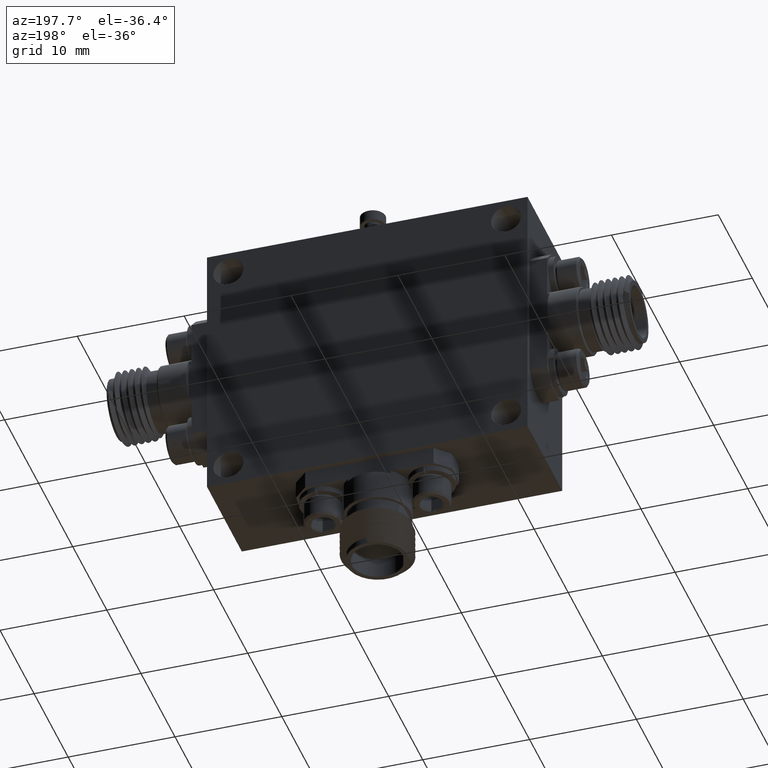
[diagram: clean part render]
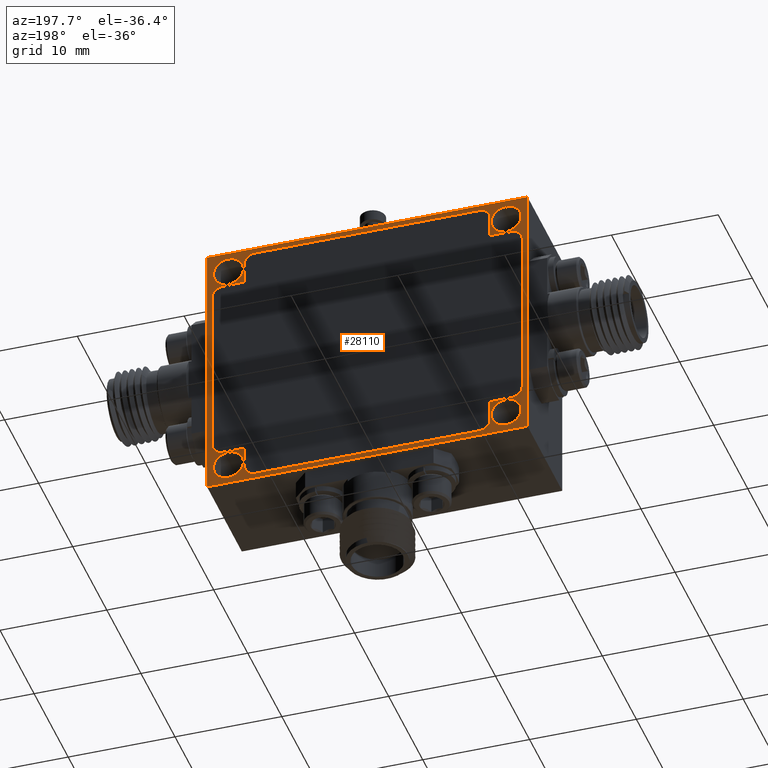
[diagram: same view with one face highlighted and labeled with its STEP entity id]
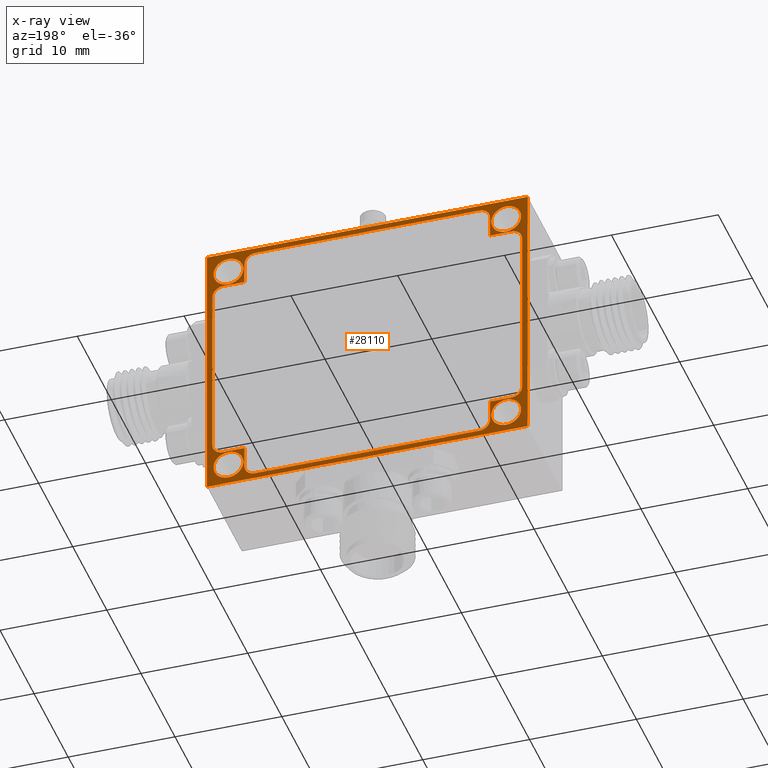
[diagram: x-ray of the same camera — body ghosted, the highlighted face saturated]
A machine part, auxiliary view. The second image highlights one B-rep face of the part: STEP entity #28110.
The next image is the same camera in x-ray: the body ghosted, the highlighted face saturated — about 0% of this face is hidden behind the body in this view.
In plain terms, the highlighted planar face has unit normal (0, -1, 0).
Its self-contained STEP definition (entity closure, byte-faithful):
#122 = EDGE_CURVE ( 'NONE', #12445, #32969, #19765, .T. ) ;
#153 = DIRECTION ( 'NONE',  ( 0.0000000000000000000, 0.0000000000000000000, 1.000000000000000000 ) ) ;
#395 = FACE_OUTER_BOUND ( 'NONE', #2625, .T. ) ;
#428 = LINE ( 'NONE', #12777, #27775 ) ;
#452 = CARTESIAN_POINT ( 'NONE',  ( 1.010138017434629300, 0.8444262244131229800, 0.3648537532274366300 ) ) ;
#487 = ORIENTED_EDGE ( 'NONE', *, *, #29494, .F. ) ;
#512 = CARTESIAN_POINT ( 'NONE',  ( 0.02588604893069251100, 0.8444262244131229800, 0.4829639894479094700 ) ) ;
#576 = CARTESIAN_POINT ( 'NONE',  ( 1.108563214285023000, 0.8444262244131229800, 0.3845387925975153900 ) ) ;
#843 = DIRECTION ( 'NONE',  ( 0.0000000000000000000, 1.000000000000000000, 0.0000000000000000000 ) ) ;
#856 = CARTESIAN_POINT ( 'NONE',  ( 0.06525612767085049700, 0.8444262244131229800, 1.168003359526649200 ) ) ;
#974 = CARTESIAN_POINT ( 'NONE',  ( 0.1833663638913224400, 0.8444262244131229800, 1.286113595747121700 ) ) ;
#983 = VERTEX_POINT ( 'NONE', #9851 ) ;
#1001 = CIRCLE ( 'NONE', #13069, 0.03937007874015751400 ) ;
#1025 = ORIENTED_EDGE ( 'NONE', *, *, #30636, .F. ) ;
#1027 = DIRECTION ( 'NONE',  ( -0.0000000000000000000, -0.0000000000000000000, -1.000000000000000000 ) ) ;
#1048 = AXIS2_PLACEMENT_3D ( 'NONE', #22499, #7740, #28100 ) ;
#1709 = CIRCLE ( 'NONE', #28706, 0.05511811023622054800 ) ;
#1711 = EDGE_CURVE ( 'NONE', #23795, #7421, #6499, .T. ) ;
#1934 = CARTESIAN_POINT ( 'NONE',  ( 1.049508096174786900, 0.8444262244131229800, 0.3648537532274369100 ) ) ;
#2179 = LINE ( 'NONE', #2451, #24589 ) ;
#2217 = DIRECTION ( 'NONE',  ( 0.0000000000000000000, 1.000000000000000000, 0.0000000000000000000 ) ) ;
#2287 = VECTOR ( 'NONE', #9958, 39.37007874015748100 ) ;
#2451 = CARTESIAN_POINT ( 'NONE',  ( 0.006201009560613753700, 0.8444262244131229800, 0.3057986351172003500 ) ) ;
#2625 = EDGE_LOOP ( 'NONE', ( #34756, #11247, #34040, #15134 ) ) ;
#2733 = DIRECTION ( 'NONE',  ( 0.0000000000000000000, 0.0000000000000000000, -1.000000000000000000 ) ) ;
#2904 = VERTEX_POINT ( 'NONE', #26044 ) ;
#3063 = CARTESIAN_POINT ( 'NONE',  ( 1.049508096174804700, 0.8444262244131229800, 1.246743517006963800 ) ) ;
#3078 = CIRCLE ( 'NONE', #20164, 0.03937007874015751400 ) ;
#3230 = LINE ( 'NONE', #33286, #2287 ) ;
#3564 = FACE_BOUND ( 'NONE', #24877, .T. ) ;
#3825 = CARTESIAN_POINT ( 'NONE',  ( 0.08494116704093754300, 0.8444262244131229800, 1.282176587873106000 ) ) ;
#3851 = CIRCLE ( 'NONE', #17615, 0.03937007874015751400 ) ;
#4019 = DIRECTION ( 'NONE',  ( 0.0000000000000000000, 0.0000000000000000000, 1.000000000000000000 ) ) ;
#4077 = CIRCLE ( 'NONE', #6754, 0.05511811023622047900 ) ;
#4165 = EDGE_CURVE ( 'NONE', #27328, #12445, #428, .T. ) ;
#4349 = VECTOR ( 'NONE', #15239, 39.37007874015748100 ) ;
#4463 = VECTOR ( 'NONE', #30108, 39.37007874015748100 ) ;
#4669 = EDGE_CURVE ( 'NONE', #31867, #33138, #4077, .T. ) ;
#4779 = EDGE_LOOP ( 'NONE', ( #19497, #18621 ) ) ;
#4782 = DIRECTION ( 'NONE',  ( 1.000000000000000000, 0.0000000000000000000, 0.0000000000000000000 ) ) ;
#4783 = ORIENTED_EDGE ( 'NONE', *, *, #20869, .F. ) ;
#4842 = ORIENTED_EDGE ( 'NONE', *, *, #13741, .F. ) ;
#5169 = VECTOR ( 'NONE', #27465, 39.37007874015748100 ) ;
#5336 = ORIENTED_EDGE ( 'NONE', *, *, #8268, .F. ) ;
#5462 = CIRCLE ( 'NONE', #20924, 0.05511811023622054800 ) ;
#5733 = EDGE_CURVE ( 'NONE', #11210, #33036, #2179, .T. ) ;
#5810 = AXIS2_PLACEMENT_3D ( 'NONE', #14321, #19676, #19934 ) ;
#5876 = CARTESIAN_POINT ( 'NONE',  ( 0.006201009560614026900, 0.8444262244131229800, 1.305798635117200400 ) ) ;
#6032 = CARTESIAN_POINT ( 'NONE',  ( 1.108563214285023000, 0.8444262244131229800, 0.4396569028337359300 ) ) ;
#6283 = DIRECTION ( 'NONE',  ( -1.000000000000000000, 0.0000000000000000000, 0.0000000000000000000 ) ) ;
#6291 = EDGE_CURVE ( 'NONE', #32687, #983, #19991, .T. ) ;
#6499 = LINE ( 'NONE', #21836, #20181 ) ;
#6587 = EDGE_CURVE ( 'NONE', #27730, #29065, #14514, .T. ) ;
#6754 = AXIS2_PLACEMENT_3D ( 'NONE', #35763, #843, #21367 ) ;
#6815 = CIRCLE ( 'NONE', #23305, 0.05511811023622054800 ) ;
#6980 = CARTESIAN_POINT ( 'NONE',  ( 1.167618332395259600, 0.8444262244131229800, 1.128633280786491600 ) ) ;
#7302 = ORIENTED_EDGE ( 'NONE', *, *, #27561, .F. ) ;
#7421 = VERTEX_POINT ( 'NONE', #28667 ) ;
#7559 = CARTESIAN_POINT ( 'NONE',  ( 0.08494116704092871700, 0.8444262244131229800, 0.3845387925975153900 ) ) ;
#7724 = CIRCLE ( 'NONE', #1048, 0.05511811023622054800 ) ;
#7740 = DIRECTION ( 'NONE',  ( 0.0000000000000000000, 1.000000000000000000, 0.0000000000000000000 ) ) ;
#7907 = CIRCLE ( 'NONE', #5810, 0.05511811023622054800 ) ;
#8168 = FACE_BOUND ( 'NONE', #18473, .T. ) ;
#8268 = EDGE_CURVE ( 'NONE', #8832, #27730, #13447, .T. ) ;
#8282 = EDGE_CURVE ( 'NONE', #11203, #2904, #24395, .T. ) ;
#8283 = CARTESIAN_POINT ( 'NONE',  ( 1.187303371765338500, 0.8444262244131229800, 1.305798635117200400 ) ) ;
#8440 = CARTESIAN_POINT ( 'NONE',  ( 0.02588604893069274300, 0.8444262244131229800, 1.128633280786491600 ) ) ;
#8560 = EDGE_CURVE ( 'NONE', #32694, #11210, #9790, .T. ) ;
#8821 = DIRECTION ( 'NONE',  ( 0.0000000000000000000, -1.000000000000000000, 0.0000000000000000000 ) ) ;
#8832 = VERTEX_POINT ( 'NONE', #32700 ) ;
#8960 = ORIENTED_EDGE ( 'NONE', *, *, #18522, .F. ) ;
#8997 = EDGE_CURVE ( 'NONE', #24760, #29865, #20258, .T. ) ;
#9023 = VERTEX_POINT ( 'NONE', #19012 ) ;
#9068 = FACE_BOUND ( 'NONE', #4779, .T. ) ;
#9408 = ORIENTED_EDGE ( 'NONE', *, *, #6291, .F. ) ;
#9512 = CARTESIAN_POINT ( 'NONE',  ( 0.1439962851511649200, 0.8444262244131229800, 0.3648537532274369100 ) ) ;
#9605 = EDGE_CURVE ( 'NONE', #27583, #12158, #29368, .T. ) ;
#9790 = LINE ( 'NONE', #8283, #22125 ) ;
#9851 = CARTESIAN_POINT ( 'NONE',  ( 0.1439962851511649400, 0.8444262244131229800, 0.4435939107077516700 ) ) ;
#9931 = EDGE_CURVE ( 'NONE', #13664, #32175, #7907, .T. ) ;
#9958 = DIRECTION ( 'NONE',  ( 2.731847993664263200E-016, -0.0000000000000000000, 1.000000000000000000 ) ) ;
#9974 = DIRECTION ( 'NONE',  ( 0.0000000000000000000, 1.000000000000000000, -0.0000000000000000000 ) ) ;
#10102 = DIRECTION ( 'NONE',  ( 0.0000000000000000000, 0.0000000000000000000, -1.000000000000000000 ) ) ;
#10301 = CARTESIAN_POINT ( 'NONE',  ( 0.08494116704093754300, 0.8444262244131229800, 1.227058477636885400 ) ) ;
#10414 = DIRECTION ( 'NONE',  ( 0.0000000000000000000, 0.0000000000000000000, 1.000000000000000000 ) ) ;
#10457 = DIRECTION ( 'NONE',  ( 0.0000000000000000000, 0.0000000000000000000, 1.000000000000000000 ) ) ;
#10458 = CARTESIAN_POINT ( 'NONE',  ( 1.128248253655102000, 0.8444262244131229800, 1.168003359526649200 ) ) ;
#10678 = ORIENTED_EDGE ( 'NONE', *, *, #9605, .F. ) ;
#10961 = VECTOR ( 'NONE', #6283, 39.37007874015748100 ) ;
#11203 = VERTEX_POINT ( 'NONE', #37535 ) ;
#11210 = VERTEX_POINT ( 'NONE', #20019 ) ;
#11247 = ORIENTED_EDGE ( 'NONE', *, *, #23115, .T. ) ;
#11398 = ORIENTED_EDGE ( 'NONE', *, *, #4165, .F. ) ;
#11574 = VERTEX_POINT ( 'NONE', #35282 ) ;
#11763 = CARTESIAN_POINT ( 'NONE',  ( 0.06525612767084999800, 0.8444262244131229800, 0.4435939107077516700 ) ) ;
#11820 = FACE_BOUND ( 'NONE', #32051, .T. ) ;
#12158 = VERTEX_POINT ( 'NONE', #1934 ) ;
#12445 = VERTEX_POINT ( 'NONE', #33929 ) ;
#12521 = LINE ( 'NONE', #37322, #22570 ) ;
#12777 = CARTESIAN_POINT ( 'NONE',  ( 1.049508096174804700, 0.8444262244131229800, 1.168003359526649200 ) ) ;
#12818 = DIRECTION ( 'NONE',  ( 0.0000000000000000000, 0.0000000000000000000, 1.000000000000000000 ) ) ;
#12826 = CARTESIAN_POINT ( 'NONE',  ( 1.010138017434646800, 0.8444262244131229800, 1.286113595747121700 ) ) ;
#13069 = AXIS2_PLACEMENT_3D ( 'NONE', #30462, #36309, #24338 ) ;
#13275 = CARTESIAN_POINT ( 'NONE',  ( 0.08494116704092871700, 0.8444262244131229800, 0.3294206823612949000 ) ) ;
#13447 = CIRCLE ( 'NONE', #22864, 0.03937007874015751400 ) ;
#13664 = VERTEX_POINT ( 'NONE', #32672 ) ;
#13741 = EDGE_CURVE ( 'NONE', #983, #18971, #28297, .T. ) ;
#14008 = DIRECTION ( 'NONE',  ( -2.731847993664263200E-016, 0.0000000000000000000, -1.000000000000000000 ) ) ;
#14321 = CARTESIAN_POINT ( 'NONE',  ( 1.108563214285032100, 0.8444262244131229800, 1.227058477636885400 ) ) ;
#14514 = LINE ( 'NONE', #974, #35046 ) ;
#14604 = CARTESIAN_POINT ( 'NONE',  ( 1.049508096174786900, 0.8444262244131229800, 0.4435939107077516700 ) ) ;
#15134 = ORIENTED_EDGE ( 'NONE', *, *, #5733, .T. ) ;
#15239 = DIRECTION ( 'NONE',  ( -4.231032868236118900E-016, 0.0000000000000000000, -1.000000000000000000 ) ) ;
#15946 = CARTESIAN_POINT ( 'NONE',  ( 0.06525612767085023400, 0.8444262244131229800, 1.128633280786491800 ) ) ;
#16069 = DIRECTION ( 'NONE',  ( 1.000000000000000000, -0.0000000000000000000, -0.0000000000000000000 ) ) ;
#16084 = DIRECTION ( 'NONE',  ( 0.0000000000000000000, 0.0000000000000000000, 1.000000000000000000 ) ) ;
#16138 = DIRECTION ( 'NONE',  ( 0.0000000000000000000, 1.000000000000000000, 0.0000000000000000000 ) ) ;
#16144 = CARTESIAN_POINT ( 'NONE',  ( 0.06525612767084999800, 0.8444262244131229800, 0.4829639894479091900 ) ) ;
#16401 = EDGE_CURVE ( 'NONE', #12158, #11203, #3078, .T. ) ;
#16561 = CARTESIAN_POINT ( 'NONE',  ( 1.128248253655101500, 0.8444262244131229800, 0.4435939107077516700 ) ) ;
#16722 = ORIENTED_EDGE ( 'NONE', *, *, #9931, .F. ) ;
#16821 = CARTESIAN_POINT ( 'NONE',  ( 0.006201009560613753700, 0.8444262244131229800, 0.3057986351172003500 ) ) ;
#17196 = VECTOR ( 'NONE', #27291, 39.37007874015748100 ) ;
#17291 = ORIENTED_EDGE ( 'NONE', *, *, #16401, .F. ) ;
#17615 = AXIS2_PLACEMENT_3D ( 'NONE', #35322, #26281, #26656 ) ;
#17919 = VECTOR ( 'NONE', #2733, 39.37007874015748100 ) ;
#17930 = LINE ( 'NONE', #36806, #22073 ) ;
#18473 = EDGE_LOOP ( 'NONE', ( #7302, #25337 ) ) ;
#18476 = CARTESIAN_POINT ( 'NONE',  ( 0.1439962851511649400, 0.8444262244131229800, 0.4435939107077516700 ) ) ;
#18522 = EDGE_CURVE ( 'NONE', #29865, #27583, #24996, .T. ) ;
#18525 = VERTEX_POINT ( 'NONE', #33511 ) ;
#18582 = ORIENTED_EDGE ( 'NONE', *, *, #122, .F. ) ;
#18621 = ORIENTED_EDGE ( 'NONE', *, *, #31096, .F. ) ;
#18686 = AXIS2_PLACEMENT_3D ( 'NONE', #32193, #35104, #153 ) ;
#18882 = AXIS2_PLACEMENT_3D ( 'NONE', #15946, #9974, #10102 ) ;
#18971 = VERTEX_POINT ( 'NONE', #11763 ) ;
#19012 = CARTESIAN_POINT ( 'NONE',  ( 0.08494116704093754300, 0.8444262244131229800, 1.171940367400665000 ) ) ;
#19146 = CARTESIAN_POINT ( 'NONE',  ( 1.128248253655102000, 0.8444262244131229800, 0.4829639894479091900 ) ) ;
#19497 = ORIENTED_EDGE ( 'NONE', *, *, #26993, .F. ) ;
#19530 = CARTESIAN_POINT ( 'NONE',  ( 1.010138017434629100, 0.8444262244131229800, 0.3254836744872791100 ) ) ;
#19676 = DIRECTION ( 'NONE',  ( 0.0000000000000000000, 1.000000000000000000, 0.0000000000000000000 ) ) ;
#19748 = ORIENTED_EDGE ( 'NONE', *, *, #22119, .F. ) ;
#19765 = LINE ( 'NONE', #33321, #5169 ) ;
#19809 = DIRECTION ( 'NONE',  ( 3.702153759706603800E-016, 0.0000000000000000000, 1.000000000000000000 ) ) ;
#19846 = ORIENTED_EDGE ( 'NONE', *, *, #33819, .F. ) ;
#19934 = DIRECTION ( 'NONE',  ( 0.0000000000000000000, 0.0000000000000000000, 1.000000000000000000 ) ) ;
#19991 = LINE ( 'NONE', #18476, #4463 ) ;
#20019 = CARTESIAN_POINT ( 'NONE',  ( 1.187303371765338100, 0.8444262244131229800, 0.3057986351172003500 ) ) ;
#20098 = CIRCLE ( 'NONE', #18686, 0.03937007874015751400 ) ;
#20164 = AXIS2_PLACEMENT_3D ( 'NONE', #452, #20858, #23797 ) ;
#20170 = VERTEX_POINT ( 'NONE', #512 ) ;
#20181 = VECTOR ( 'NONE', #16069, 39.37007874015748100 ) ;
#20258 = CIRCLE ( 'NONE', #31918, 0.03937007874015751400 ) ;
#20665 = CARTESIAN_POINT ( 'NONE',  ( 0.08494116704092871700, 0.8444262244131229800, 0.4396569028337358700 ) ) ;
#20765 = AXIS2_PLACEMENT_3D ( 'NONE', #16144, #36832, #24991 ) ;
#20858 = DIRECTION ( 'NONE',  ( 0.0000000000000000000, 1.000000000000000000, 0.0000000000000000000 ) ) ;
#20869 = EDGE_CURVE ( 'NONE', #33138, #31867, #37712, .T. ) ;
#20894 = AXIS2_PLACEMENT_3D ( 'NONE', #5876, #8821, #30318 ) ;
#20924 = AXIS2_PLACEMENT_3D ( 'NONE', #37851, #2217, #31843 ) ;
#21242 = CARTESIAN_POINT ( 'NONE',  ( 1.187303371765338500, 0.8444262244131229800, 1.305798635117200400 ) ) ;
#21348 = ORIENTED_EDGE ( 'NONE', *, *, #24857, .F. ) ;
#21367 = DIRECTION ( 'NONE',  ( 0.0000000000000000000, 0.0000000000000000000, 1.000000000000000000 ) ) ;
#21836 = CARTESIAN_POINT ( 'NONE',  ( 0.1439962851511646700, 0.8444262244131229800, 1.168003359526649200 ) ) ;
#21956 = DIRECTION ( 'NONE',  ( 0.0000000000000000000, 1.000000000000000000, 0.0000000000000000000 ) ) ;
#22073 = VECTOR ( 'NONE', #4782, 39.37007874015748100 ) ;
#22119 = EDGE_CURVE ( 'NONE', #29065, #27328, #3851, .T. ) ;
#22125 = VECTOR ( 'NONE', #14008, 39.37007874015748100 ) ;
#22167 = DIRECTION ( 'NONE',  ( 0.0000000000000000000, 0.0000000000000000000, 1.000000000000000000 ) ) ;
#22499 = CARTESIAN_POINT ( 'NONE',  ( 1.108563214285023000, 0.8444262244131229800, 0.3845387925975153900 ) ) ;
#22524 = CARTESIAN_POINT ( 'NONE',  ( 0.1439962851511646700, 0.8444262244131229800, 1.168003359526649200 ) ) ;
#22570 = VECTOR ( 'NONE', #19809, 39.37007874015748100 ) ;
#22864 = AXIS2_PLACEMENT_3D ( 'NONE', #34330, #34075, #28463 ) ;
#22875 = VERTEX_POINT ( 'NONE', #6980 ) ;
#23115 = EDGE_CURVE ( 'NONE', #11574, #32694, #17930, .T. ) ;
#23240 = EDGE_LOOP ( 'NONE', ( #4783, #25793 ) ) ;
#23305 = AXIS2_PLACEMENT_3D ( 'NONE', #24713, #27114, #4019 ) ;
#23338 = ORIENTED_EDGE ( 'NONE', *, *, #1711, .F. ) ;
#23445 = ORIENTED_EDGE ( 'NONE', *, *, #36647, .F. ) ;
#23490 = CIRCLE ( 'NONE', #18882, 0.03937007874015751400 ) ;
#23532 = ORIENTED_EDGE ( 'NONE', *, *, #6587, .F. ) ;
#23716 = CARTESIAN_POINT ( 'NONE',  ( 1.108563214285032100, 0.8444262244131229800, 1.282176587873106000 ) ) ;
#23795 = VERTEX_POINT ( 'NONE', #856 ) ;
#23797 = DIRECTION ( 'NONE',  ( 0.0000000000000000000, 0.0000000000000000000, 1.000000000000000000 ) ) ;
#23932 = ORIENTED_EDGE ( 'NONE', *, *, #8997, .F. ) ;
#24175 = CARTESIAN_POINT ( 'NONE',  ( 1.167618332395259600, 0.8444262244131229800, 1.128633280786491600 ) ) ;
#24338 = DIRECTION ( 'NONE',  ( 0.0000000000000000000, 0.0000000000000000000, 1.000000000000000000 ) ) ;
#24383 = AXIS2_PLACEMENT_3D ( 'NONE', #10301, #16138, #22167 ) ;
#24395 = LINE ( 'NONE', #19530, #31714 ) ;
#24589 = VECTOR ( 'NONE', #28608, 39.37007874015748100 ) ;
#24713 = CARTESIAN_POINT ( 'NONE',  ( 0.08494116704093754300, 0.8444262244131229800, 1.227058477636885400 ) ) ;
#24760 = VERTEX_POINT ( 'NONE', #28986 ) ;
#24857 = EDGE_CURVE ( 'NONE', #32969, #22875, #1001, .T. ) ;
#24877 = EDGE_LOOP ( 'NONE', ( #1025, #16722 ) ) ;
#24957 = DIRECTION ( 'NONE',  ( 1.000000000000000000, 0.0000000000000000000, 0.0000000000000000000 ) ) ;
#24991 = DIRECTION ( 'NONE',  ( 0.0000000000000000000, 0.0000000000000000000, 1.000000000000000000 ) ) ;
#24996 = LINE ( 'NONE', #33017, #17196 ) ;
#25074 = CARTESIAN_POINT ( 'NONE',  ( 1.049508096174786900, 0.8444262244131229800, 0.4435939107077516700 ) ) ;
#25093 = VECTOR ( 'NONE', #10414, 39.37007874015748100 ) ;
#25337 = ORIENTED_EDGE ( 'NONE', *, *, #28243, .F. ) ;
#25458 = CIRCLE ( 'NONE', #20765, 0.03937007874015751400 ) ;
#25752 = ORIENTED_EDGE ( 'NONE', *, *, #8282, .F. ) ;
#25793 = ORIENTED_EDGE ( 'NONE', *, *, #4669, .F. ) ;
#26044 = CARTESIAN_POINT ( 'NONE',  ( 0.1833663638913224400, 0.8444262244131229800, 0.3254836744872791100 ) ) ;
#26281 = DIRECTION ( 'NONE',  ( 0.0000000000000000000, 1.000000000000000000, 0.0000000000000000000 ) ) ;
#26547 = ORIENTED_EDGE ( 'NONE', *, *, #36488, .F. ) ;
#26656 = DIRECTION ( 'NONE',  ( 0.0000000000000000000, 0.0000000000000000000, 1.000000000000000000 ) ) ;
#26993 = EDGE_CURVE ( 'NONE', #35780, #9023, #6815, .T. ) ;
#27114 = DIRECTION ( 'NONE',  ( 0.0000000000000000000, 1.000000000000000000, 0.0000000000000000000 ) ) ;
#27291 = DIRECTION ( 'NONE',  ( -1.000000000000000000, -0.0000000000000000000, -0.0000000000000000000 ) ) ;
#27328 = VERTEX_POINT ( 'NONE', #3063 ) ;
#27465 = DIRECTION ( 'NONE',  ( 1.000000000000000000, 0.0000000000000000000, 0.0000000000000000000 ) ) ;
#27561 = EDGE_CURVE ( 'NONE', #36307, #18525, #7724, .T. ) ;
#27583 = VERTEX_POINT ( 'NONE', #25074 ) ;
#27623 = LINE ( 'NONE', #24175, #4349 ) ;
#27730 = VERTEX_POINT ( 'NONE', #32810 ) ;
#27775 = VECTOR ( 'NONE', #1027, 39.37007874015748100 ) ;
#28100 = DIRECTION ( 'NONE',  ( 0.0000000000000000000, 0.0000000000000000000, 1.000000000000000000 ) ) ;
#28110 = ADVANCED_FACE ( 'NONE', ( #11820, #8168, #3564, #9068, #35516, #395 ), #29609, .F. ) ;
#28243 = EDGE_CURVE ( 'NONE', #18525, #36307, #1709, .T. ) ;
#28297 = LINE ( 'NONE', #32549, #10961 ) ;
#28463 = DIRECTION ( 'NONE',  ( 0.0000000000000000000, 0.0000000000000000000, -1.000000000000000000 ) ) ;
#28608 = DIRECTION ( 'NONE',  ( -1.000000000000000000, -0.0000000000000000000, -0.0000000000000000000 ) ) ;
#28667 = CARTESIAN_POINT ( 'NONE',  ( 0.1439962851511646700, 0.8444262244131229800, 1.168003359526649200 ) ) ;
#28706 = AXIS2_PLACEMENT_3D ( 'NONE', #576, #32833, #12818 ) ;
#28986 = CARTESIAN_POINT ( 'NONE',  ( 1.167618332395259400, 0.8444262244131229800, 0.4829639894479094700 ) ) ;
#29065 = VERTEX_POINT ( 'NONE', #12826 ) ;
#29368 = LINE ( 'NONE', #14604, #17919 ) ;
#29494 = EDGE_CURVE ( 'NONE', #2904, #32687, #20098, .T. ) ;
#29609 = PLANE ( 'NONE',  #20894 ) ;
#29778 = EDGE_CURVE ( 'NONE', #33036, #11574, #3230, .T. ) ;
#29865 = VERTEX_POINT ( 'NONE', #16561 ) ;
#30108 = DIRECTION ( 'NONE',  ( -0.0000000000000000000, -0.0000000000000000000, 1.000000000000000000 ) ) ;
#30318 = DIRECTION ( 'NONE',  ( 0.0000000000000000000, 0.0000000000000000000, -1.000000000000000000 ) ) ;
#30462 = CARTESIAN_POINT ( 'NONE',  ( 1.128248253655102200, 0.8444262244131229800, 1.128633280786491800 ) ) ;
#30556 = EDGE_CURVE ( 'NONE', #7421, #8832, #31944, .T. ) ;
#30636 = EDGE_CURVE ( 'NONE', #32175, #13664, #5462, .T. ) ;
#30896 = DIRECTION ( 'NONE',  ( 0.0000000000000000000, 1.000000000000000000, 0.0000000000000000000 ) ) ;
#31096 = EDGE_CURVE ( 'NONE', #9023, #35780, #33697, .T. ) ;
#31235 = ORIENTED_EDGE ( 'NONE', *, *, #30556, .F. ) ;
#31278 = DIRECTION ( 'NONE',  ( -1.000000000000000000, 0.0000000000000000000, 0.0000000000000000000 ) ) ;
#31714 = VECTOR ( 'NONE', #31278, 39.37007874015748100 ) ;
#31843 = DIRECTION ( 'NONE',  ( 0.0000000000000000000, 0.0000000000000000000, 1.000000000000000000 ) ) ;
#31867 = VERTEX_POINT ( 'NONE', #13275 ) ;
#31918 = AXIS2_PLACEMENT_3D ( 'NONE', #19146, #30896, #16084 ) ;
#31944 = LINE ( 'NONE', #22524, #25093 ) ;
#32051 = EDGE_LOOP ( 'NONE', ( #9408, #487, #25752, #17291, #10678, #8960, #23932, #19846, #21348, #18582, #11398, #19748, #23532, #5336, #31235, #23338, #26547, #23445, #35857, #4842 ) ) ;
#32175 = VERTEX_POINT ( 'NONE', #23716 ) ;
#32193 = CARTESIAN_POINT ( 'NONE',  ( 0.1833663638913224400, 0.8444262244131229800, 0.3648537532274366300 ) ) ;
#32310 = EDGE_CURVE ( 'NONE', #18971, #20170, #25458, .T. ) ;
#32549 = CARTESIAN_POINT ( 'NONE',  ( 0.1439962851511649400, 0.8444262244131229800, 0.4435939107077516700 ) ) ;
#32672 = CARTESIAN_POINT ( 'NONE',  ( 1.108563214285032100, 0.8444262244131229800, 1.171940367400665000 ) ) ;
#32687 = VERTEX_POINT ( 'NONE', #9512 ) ;
#32694 = VERTEX_POINT ( 'NONE', #21242 ) ;
#32700 = CARTESIAN_POINT ( 'NONE',  ( 0.1439962851511646900, 0.8444262244131229800, 1.246743517006963800 ) ) ;
#32810 = CARTESIAN_POINT ( 'NONE',  ( 0.1833663638913224400, 0.8444262244131229800, 1.286113595747121700 ) ) ;
#32833 = DIRECTION ( 'NONE',  ( 0.0000000000000000000, 1.000000000000000000, 0.0000000000000000000 ) ) ;
#32969 = VERTEX_POINT ( 'NONE', #10458 ) ;
#33017 = CARTESIAN_POINT ( 'NONE',  ( 1.049508096174786900, 0.8444262244131229800, 0.4435939107077516700 ) ) ;
#33036 = VERTEX_POINT ( 'NONE', #16821 ) ;
#33138 = VERTEX_POINT ( 'NONE', #20665 ) ;
#33286 = CARTESIAN_POINT ( 'NONE',  ( 0.006201009560614026900, 0.8444262244131229800, 1.305798635117200400 ) ) ;
#33321 = CARTESIAN_POINT ( 'NONE',  ( 1.049508096174804700, 0.8444262244131229800, 1.168003359526649200 ) ) ;
#33511 = CARTESIAN_POINT ( 'NONE',  ( 1.108563214285023000, 0.8444262244131229800, 0.3294206823612948500 ) ) ;
#33697 = CIRCLE ( 'NONE', #24383, 0.05511811023622054800 ) ;
#33819 = EDGE_CURVE ( 'NONE', #22875, #24760, #27623, .T. ) ;
#33929 = CARTESIAN_POINT ( 'NONE',  ( 1.049508096174804700, 0.8444262244131229800, 1.168003359526649200 ) ) ;
#34040 = ORIENTED_EDGE ( 'NONE', *, *, #8560, .T. ) ;
#34075 = DIRECTION ( 'NONE',  ( 0.0000000000000000000, 1.000000000000000000, -0.0000000000000000000 ) ) ;
#34330 = CARTESIAN_POINT ( 'NONE',  ( 0.1833663638913221600, 0.8444262244131229800, 1.246743517006964100 ) ) ;
#34756 = ORIENTED_EDGE ( 'NONE', *, *, #29778, .T. ) ;
#35046 = VECTOR ( 'NONE', #24957, 39.37007874015748100 ) ;
#35104 = DIRECTION ( 'NONE',  ( 0.0000000000000000000, 1.000000000000000000, 0.0000000000000000000 ) ) ;
#35212 = VERTEX_POINT ( 'NONE', #8440 ) ;
#35282 = CARTESIAN_POINT ( 'NONE',  ( 0.006201009560614026900, 0.8444262244131229800, 1.305798635117200400 ) ) ;
#35322 = CARTESIAN_POINT ( 'NONE',  ( 1.010138017434647000, 0.8444262244131229800, 1.246743517006964100 ) ) ;
#35516 = FACE_BOUND ( 'NONE', #23240, .T. ) ;
#35763 = CARTESIAN_POINT ( 'NONE',  ( 0.08494116704092871700, 0.8444262244131229800, 0.3845387925975153900 ) ) ;
#35780 = VERTEX_POINT ( 'NONE', #3825 ) ;
#35857 = ORIENTED_EDGE ( 'NONE', *, *, #32310, .F. ) ;
#36307 = VERTEX_POINT ( 'NONE', #6032 ) ;
#36309 = DIRECTION ( 'NONE',  ( 0.0000000000000000000, 1.000000000000000000, 0.0000000000000000000 ) ) ;
#36488 = EDGE_CURVE ( 'NONE', #35212, #23795, #23490, .T. ) ;
#36647 = EDGE_CURVE ( 'NONE', #20170, #35212, #12521, .T. ) ;
#36806 = CARTESIAN_POINT ( 'NONE',  ( 0.006201009560614026900, 0.8444262244131229800, 1.305798635117200400 ) ) ;
#36832 = DIRECTION ( 'NONE',  ( 0.0000000000000000000, 1.000000000000000000, 0.0000000000000000000 ) ) ;
#37322 = CARTESIAN_POINT ( 'NONE',  ( 0.02588604893069251100, 0.8444262244131229800, 0.4829639894479094700 ) ) ;
#37535 = CARTESIAN_POINT ( 'NONE',  ( 1.010138017434629100, 0.8444262244131229800, 0.3254836744872791100 ) ) ;
#37712 = CIRCLE ( 'NONE', #37897, 0.05511811023622047900 ) ;
#37851 = CARTESIAN_POINT ( 'NONE',  ( 1.108563214285032100, 0.8444262244131229800, 1.227058477636885400 ) ) ;
#37897 = AXIS2_PLACEMENT_3D ( 'NONE', #7559, #21956, #10457 ) ;